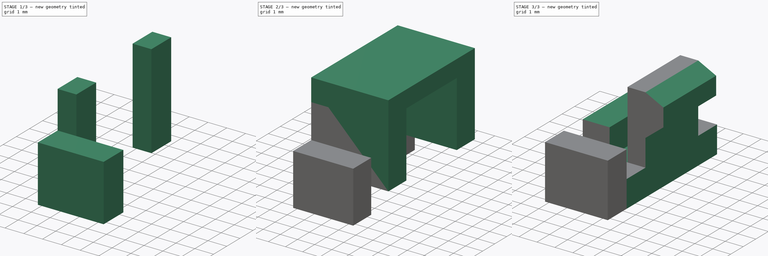
[diagram: build sequence overview — one tinted view per stage of 3, left to right]
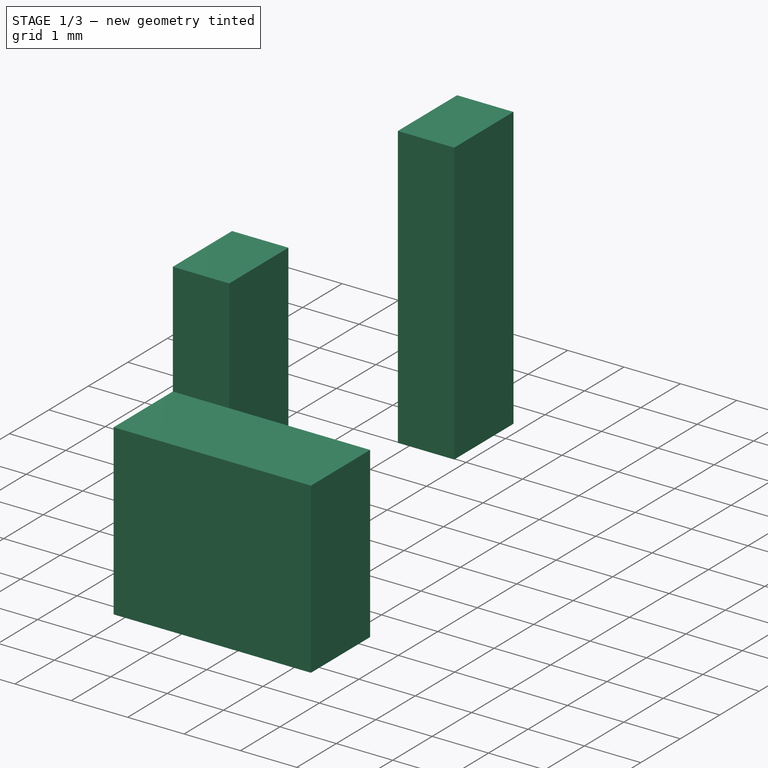
[diagram: stage 1 of 3 — iso view after this stage's code; geometry added in this stage tinted green]
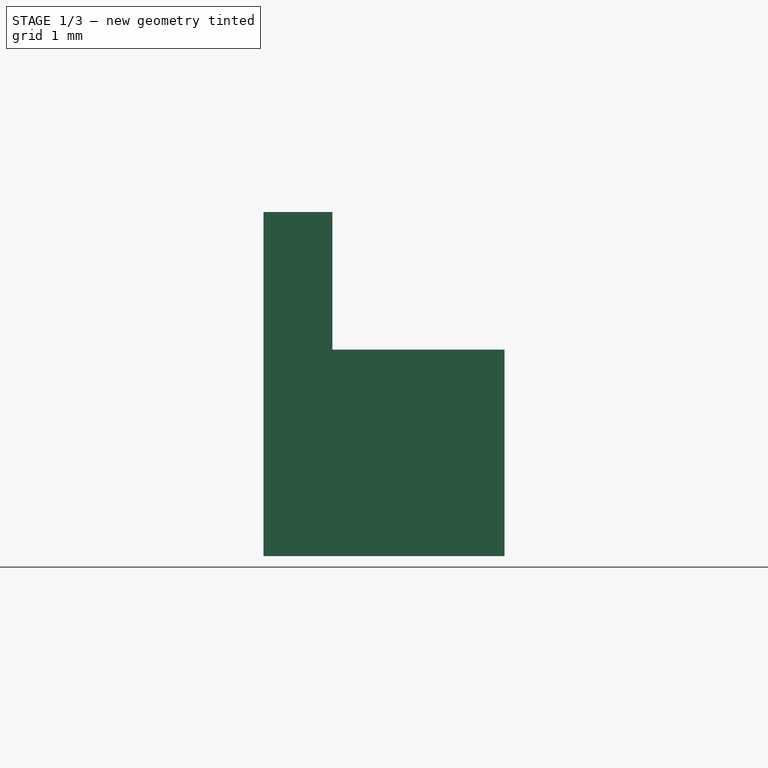
[diagram: stage 1 of 3 — front view after this stage's code; geometry added in this stage tinted green]
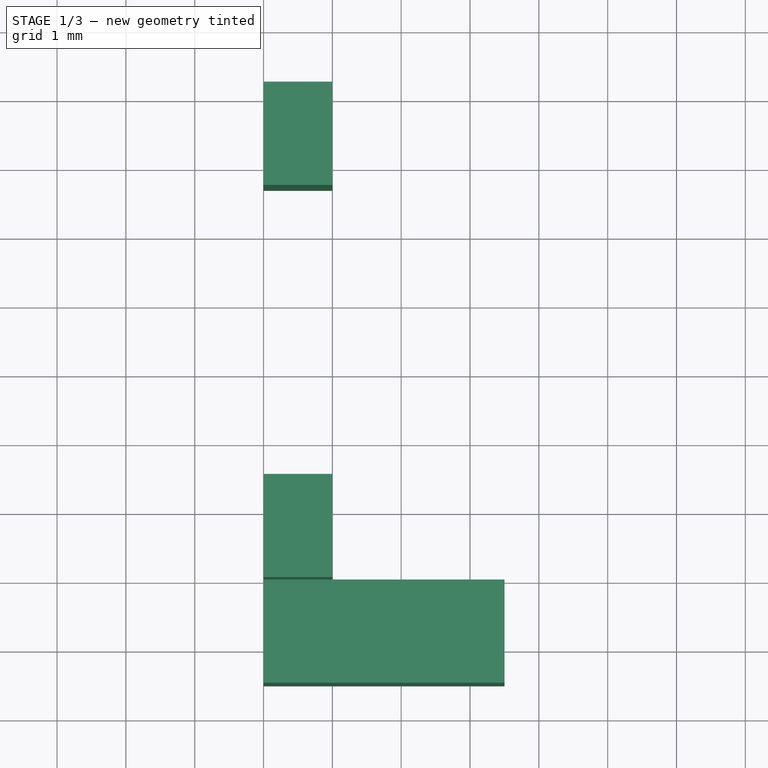
[diagram: stage 1 of 3 — top view after this stage's code; geometry added in this stage tinted green]
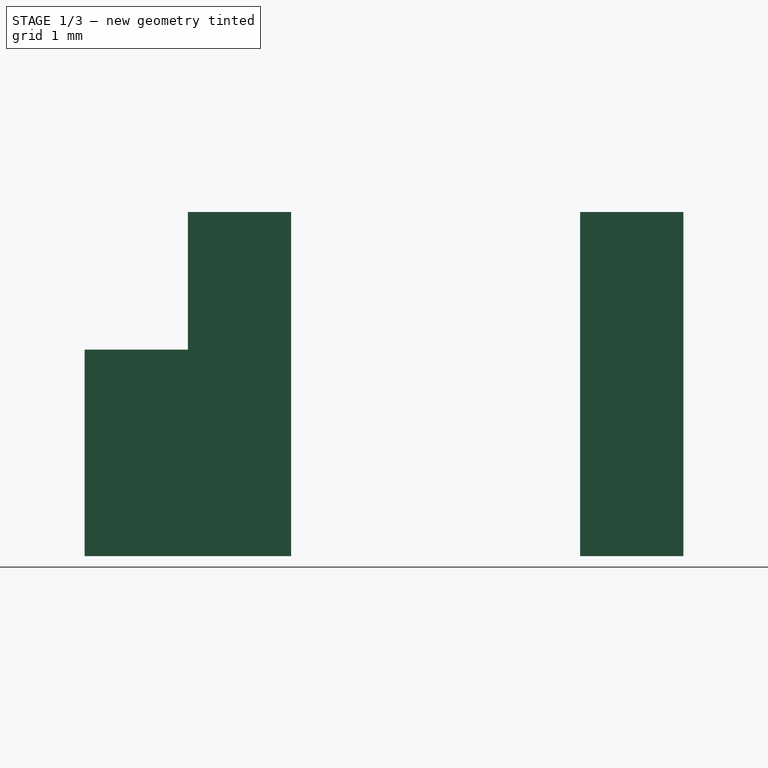
[diagram: stage 1 of 3 — right view after this stage's code; geometry added in this stage tinted green]
FCSTD DOCUMENT  (FreeCAD 0.17R13544 (Git))
Label: t25-t480-clip
License: All rights reserved
LicenseURL: http://en.wikipedia.org/wiki/All_rights_reserved
objects: Part::Box×3, Sketcher::SketchObject×2, PartDesign::Pad×2, PartDesign::Body×2, Part::MultiFuse×2, Part::Cut×1
note: 14 computed .brp shape members not serialized (recipe doc carries the construction recipe); baked Part::Feature solids carry a one-line shape summary decoded from their .brp

FEATURE [PartDesign::Body] Body001
  Group = -> [Sketch001,Pad001]
  Origin = -> Origin001
  Tip = -> Pad001
FEATURE [Part::Box] Box  label="Cube"
  AttacherType = Attacher::AttachEngine3D
  Height = 5
  Length = 1
  Width = 1.5
FEATURE [Part::Box] Box001  label="Cube001"
  AttacherType = Attacher::AttachEngine3D
  Height = 5
  Length = 1
  Placement = pos=(0,5.7,0) rot=(0,0,1;0rad)
  Width = 1.5
FEATURE [Part::Box] Box002  label="Cube002"
  AttacherType = Attacher::AttachEngine3D
  Height = 3
  Length = 3.5
  Placement = pos=(0,-1.5,0) rot=(0,0,1;0rad)
  Width = 1.5
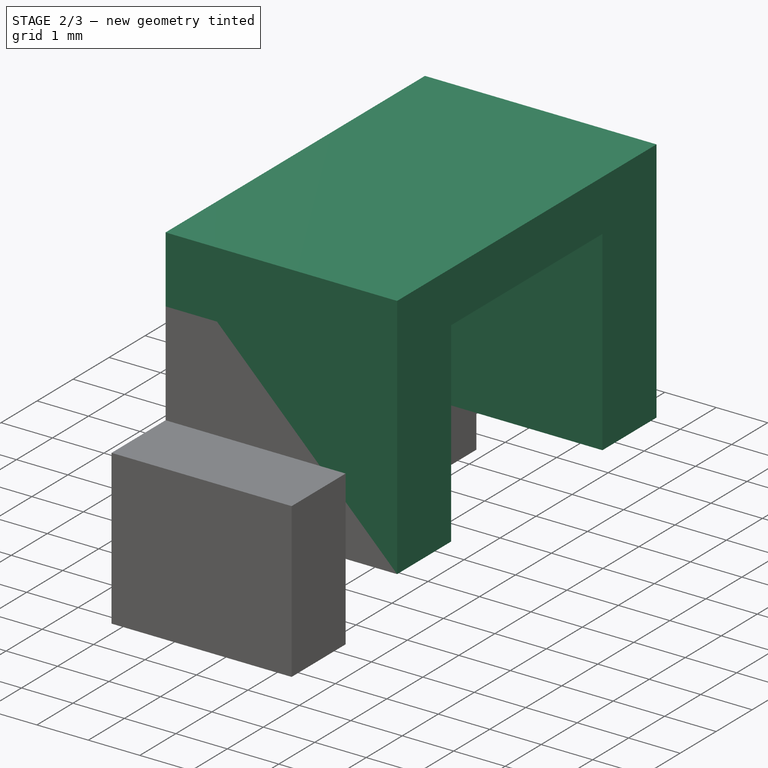
[diagram: stage 2 of 3 — iso view after this stage's code; geometry added in this stage tinted green]
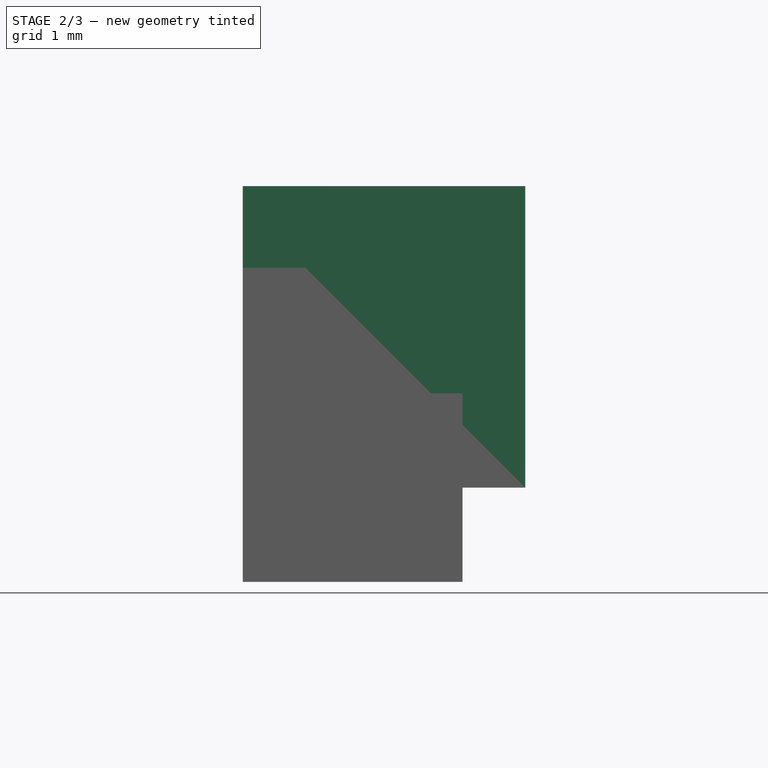
[diagram: stage 2 of 3 — front view after this stage's code; geometry added in this stage tinted green]
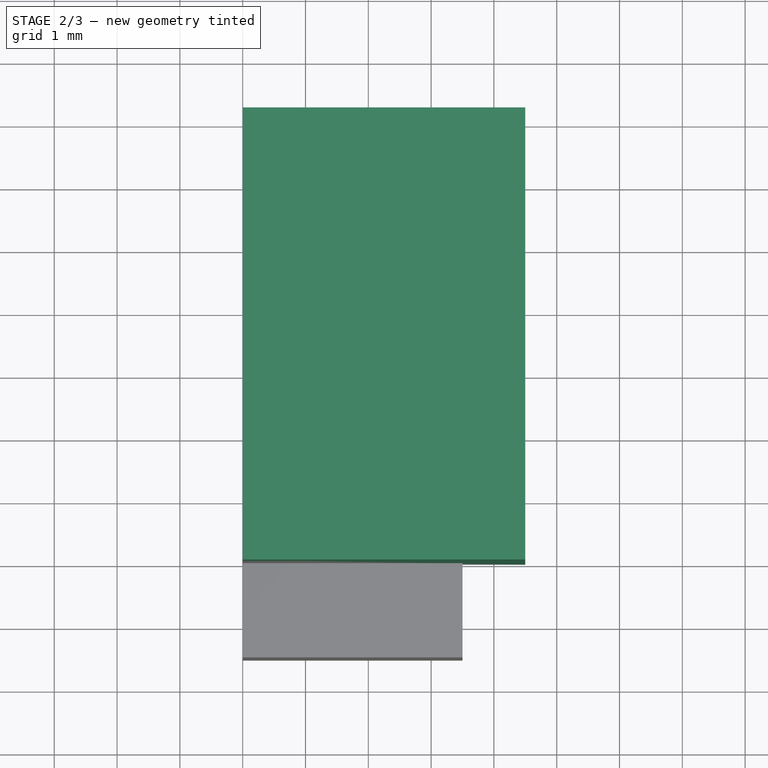
[diagram: stage 2 of 3 — top view after this stage's code; geometry added in this stage tinted green]
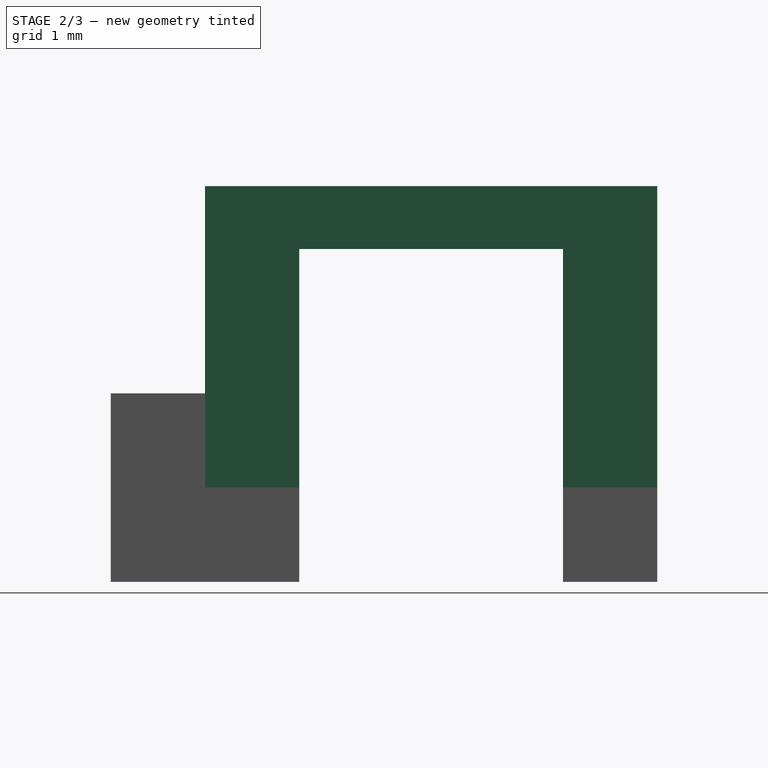
[diagram: stage 2 of 3 — right view after this stage's code; geometry added in this stage tinted green]
FEATURE [PartDesign::Body] Body
  Group = -> [Sketch,Pad]
  Origin = -> Origin
  Tip = -> Pad
FEATURE [Sketcher::SketchObject] Sketch001
  MapMode = 5
  Placement = pos=(0,0,0) rot=(0.57735,0.57735,0.57735;2.0944rad)
  Support = -> [YZ_Plane001]
  sketch-geometry (8):
    g0: LineSegment StartX=0 StartY=1.5 StartZ=0 EndX=0 EndY=6.3 EndZ=0
    g1: LineSegment StartX=0 StartY=6.3 StartZ=0 EndX=7.2 EndY=6.3 EndZ=0
    g2: LineSegment StartX=7.2 StartY=6.3 StartZ=0 EndX=7.2 EndY=1.5 EndZ=0
    g3: LineSegment StartX=7.2 StartY=1.5 StartZ=0 EndX=5.7 EndY=1.5 EndZ=0
    g4: LineSegment StartX=5.7 StartY=1.5 StartZ=0 EndX=5.7 EndY=5.3 EndZ=0
    g5: LineSegment StartX=5.7 StartY=5.3 StartZ=0 EndX=1.5 EndY=5.3 EndZ=0
    g6: LineSegment StartX=1.5 StartY=5.3 StartZ=0 EndX=1.5 EndY=1.5 EndZ=0
    g7: LineSegment StartX=1.5 StartY=1.5 StartZ=0 EndX=0 EndY=1.5 EndZ=0
  constraints (24):
    c: Vertical(g0)
    c: Coincident(g0,g1)
    c: Coincident(g1,g2)
    c: Vertical(g2)
    c: Coincident(g2,g3)
    c: Horizontal(g3)
    c: Coincident(g3,g4)
    c: Vertical(g4)
    c: Coincident(g4,g5)
    c: Horizontal(g5)
    c: Coincident(g5,g6)
    c: Vertical(g6)
    c: Coincident(g6,g7)
    c: Coincident(g7,g0)
    c: Horizontal(g1)
    c: Horizontal(g7)
    c: Distance(g7) = 1.5
    c: Distance(g3) = 1.5
    c: DistanceY(g5,g0) = 1
    c: DistanceY(g3,g6) = 0
    c: DistanceY(g-1,g0) = 1.5
    c: DistanceX(g-1,g0) = 0
    c: Distance(g1) = 7.2
    c: DistanceY(g-1,g5) = 5.3
FEATURE [PartDesign::Pad] Pad001
  Length = 4.5
  Length2 = 100
  Placement = pos=(0,0,0) rot=(0.57735,0.57735,0.57735;2.0944rad)
  Profile = -> Sketch001
  Type = 0
FEATURE [Part::MultiFuse] Fusion
  Shapes = -> [Body001,Box,Box001]
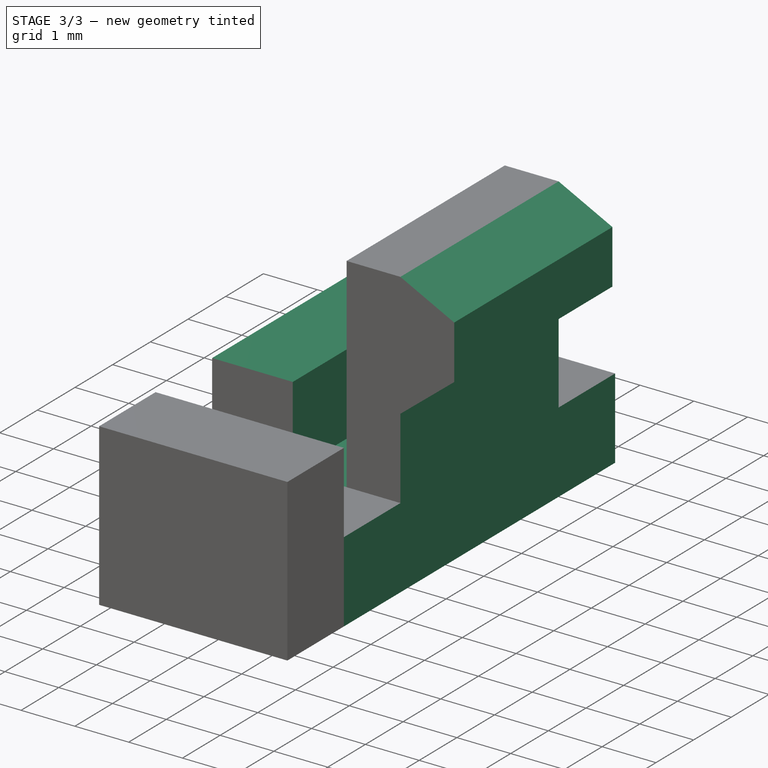
[diagram: stage 3 of 3 — iso view after this stage's code; geometry added in this stage tinted green]
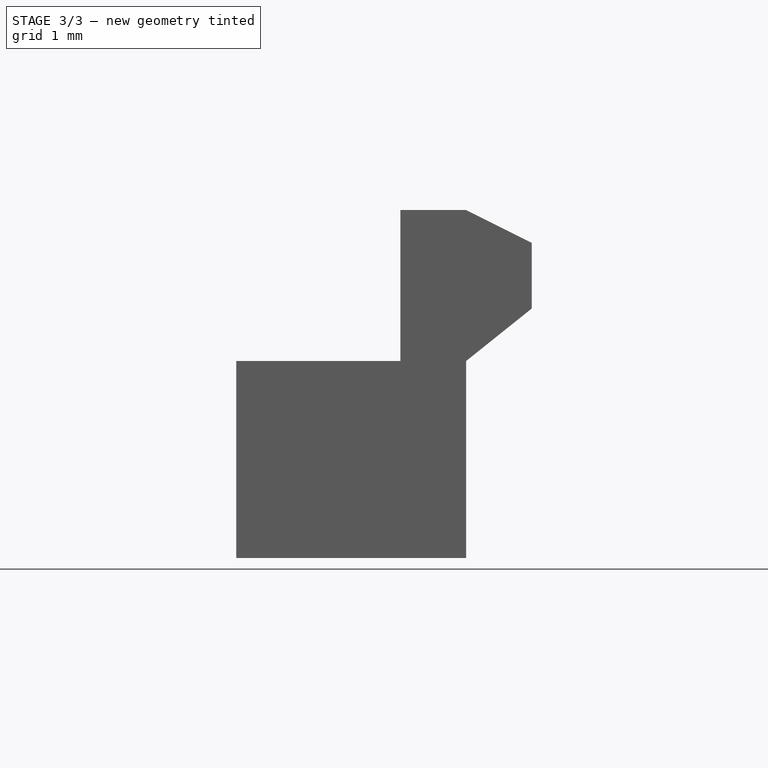
[diagram: stage 3 of 3 — front view after this stage's code; geometry added in this stage tinted green]
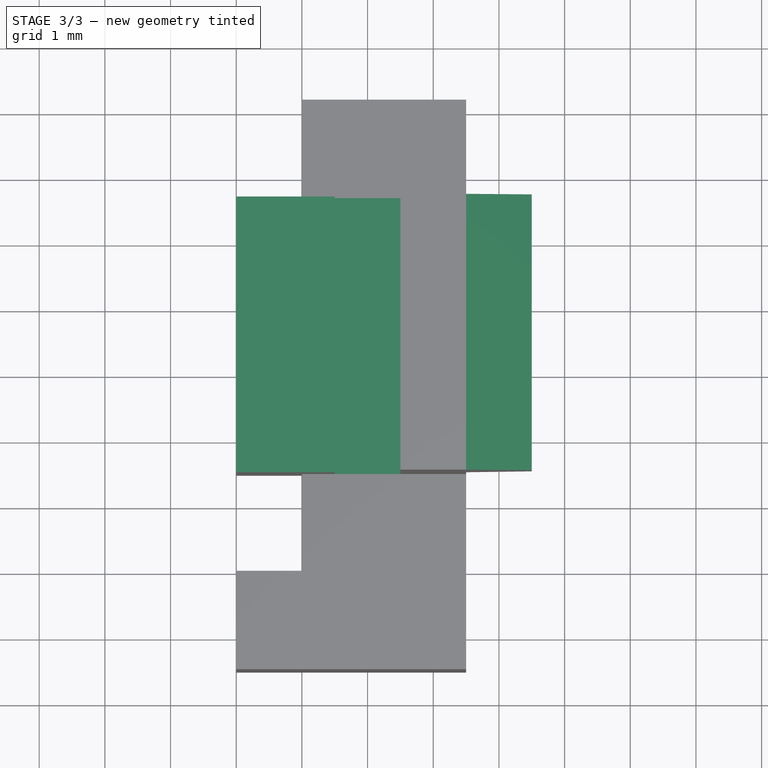
[diagram: stage 3 of 3 — top view after this stage's code; geometry added in this stage tinted green]
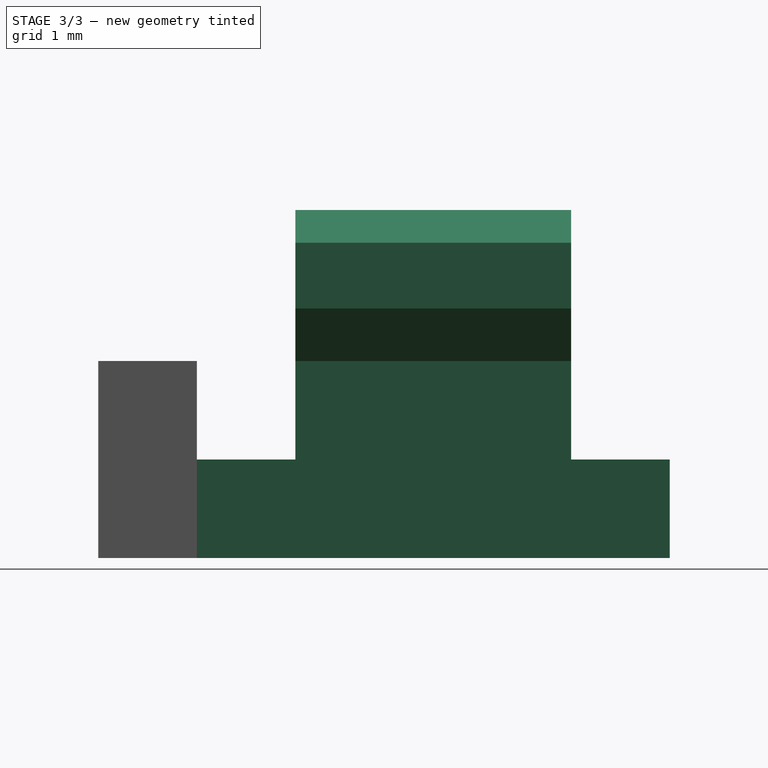
[diagram: stage 3 of 3 — right view after this stage's code; geometry added in this stage tinted green]
FEATURE [Sketcher::SketchObject] Sketch
  MapMode = 5
  Placement = pos=(0,0,0) rot=(1,0,0;1.5708rad)
  Support = -> [XZ_Plane]
  sketch-geometry (11):
    g0: LineSegment StartX=0 StartY=0 StartZ=0 EndX=3.5 EndY=0 EndZ=0
    g1: LineSegment StartX=3.5 StartY=0 StartZ=0 EndX=3.5 EndY=3 EndZ=0
    g2: LineSegment StartX=3.5 StartY=3 StartZ=0 EndX=4.5 EndY=3.8 EndZ=0
    g3: LineSegment StartX=4.5 StartY=3.8 StartZ=0 EndX=4.5 EndY=4.8 EndZ=0
    g4: LineSegment StartX=4.5 StartY=4.8 StartZ=0 EndX=3.5 EndY=5.3 EndZ=0
    g5: LineSegment StartX=3.5 StartY=5.3 StartZ=0 EndX=2.5 EndY=5.3 EndZ=0
    g6: LineSegment StartX=2.5 StartY=5.3 StartZ=0 EndX=2.5 EndY=1.5 EndZ=0
    g7: LineSegment StartX=0 StartY=3 StartZ=0 EndX=0 EndY=0 EndZ=0
    g8: LineSegment StartX=0 StartY=3 StartZ=0 EndX=1.5 EndY=3 EndZ=0
    g9: LineSegment StartX=1.5 StartY=3 StartZ=0 EndX=1.5 EndY=1.5 EndZ=0
    g10: LineSegment StartX=1.5 StartY=1.5 StartZ=0 EndX=2.5 EndY=1.5 EndZ=0
  constraints (32):
    c: Coincident(g-1,g0)
    c: Horizontal(g0)
    c: Coincident(g0,g1)
    c: Coincident(g1,g2)
    c: Coincident(g2,g3)
    c: Coincident(g3,g4)
    c: Coincident(g4,g5)
    c: Coincident(g5,g6)
    c: Vertical(g6)
    c: Coincident(g7,g-1)
    c: Vertical(g7)
    c: Vertical(g1)
    c: Distance(g1) = 3
    c: Vertical(g3)
    c: Horizontal(g5)
    c: DistanceX(g1,g2) = 1
    c: DistanceX(g4,g1) = 0
    c: Distance(g5) = 1
    c: DistanceY(g1,g2) = 0.8
    c: Distance(g4,g0) = 5.3
    c: Distance(g0) = 3.5
    c: Distance(g3) = 1
    c: Distance(g7) = 3
    c: Coincident(g7,g8)
    c: Horizontal(g8)
    c: Coincident(g8,g9)
    c: Vertical(g9)
    c: Coincident(g9,g10)
    c: Coincident(g10,g6)
    c: Horizontal(g10)
    c: Distance(g10) = 1
    c: DistanceY(g-1,g9) = 1.5
FEATURE [PartDesign::Pad] Pad
  Length = 7.2
  Length2 = 100
  Placement = pos=(0,0,0) rot=(1,0,0;1.5708rad)
  Profile = -> Sketch
  Reversed = true
  Type = 0
FEATURE [Part::Cut] Cut
  Base = -> Body
  Tool = -> Fusion
FEATURE [Part::MultiFuse] Fusion001
  Shapes = -> [Box002,Cut]
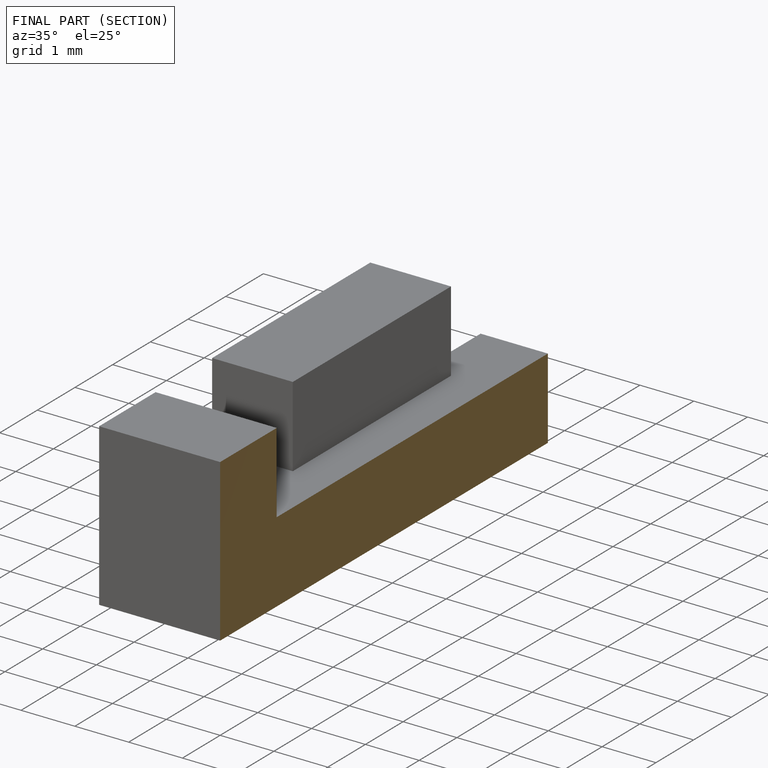
[diagram: finished part — half-section view (interior)]
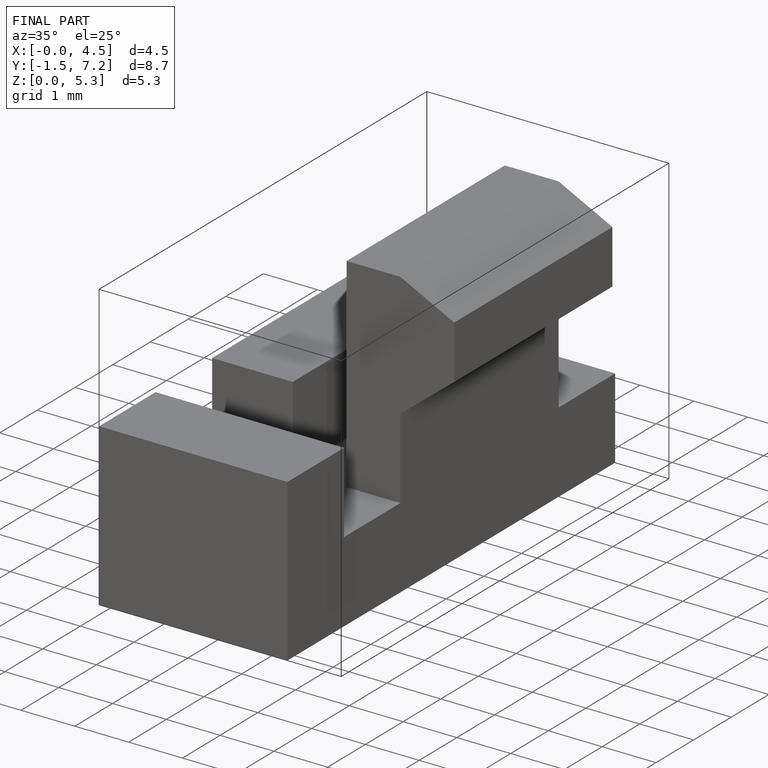
[diagram: finished part — iso view with bounding-box wireframe]
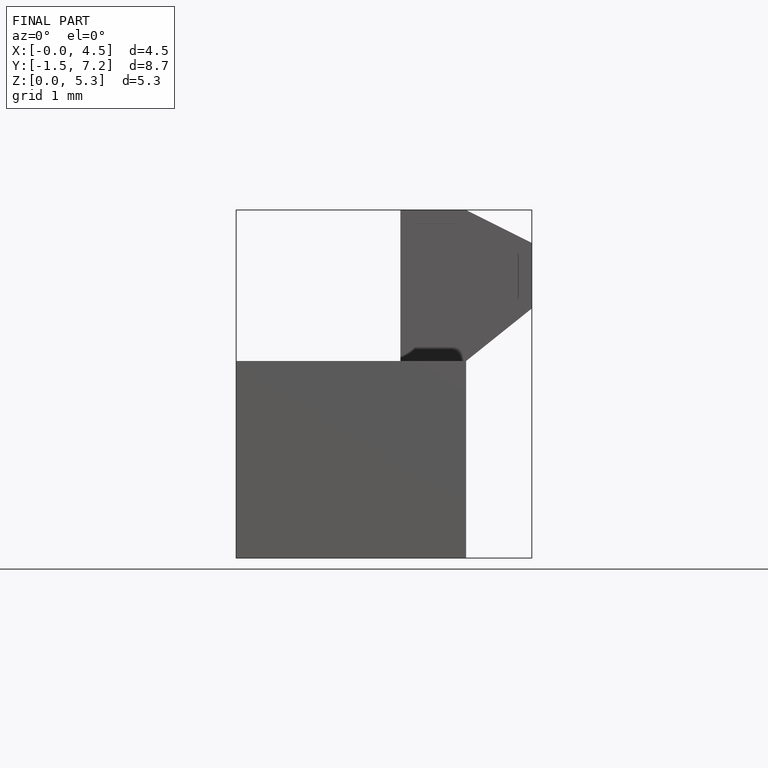
[diagram: finished part — front view with bounding-box wireframe]
